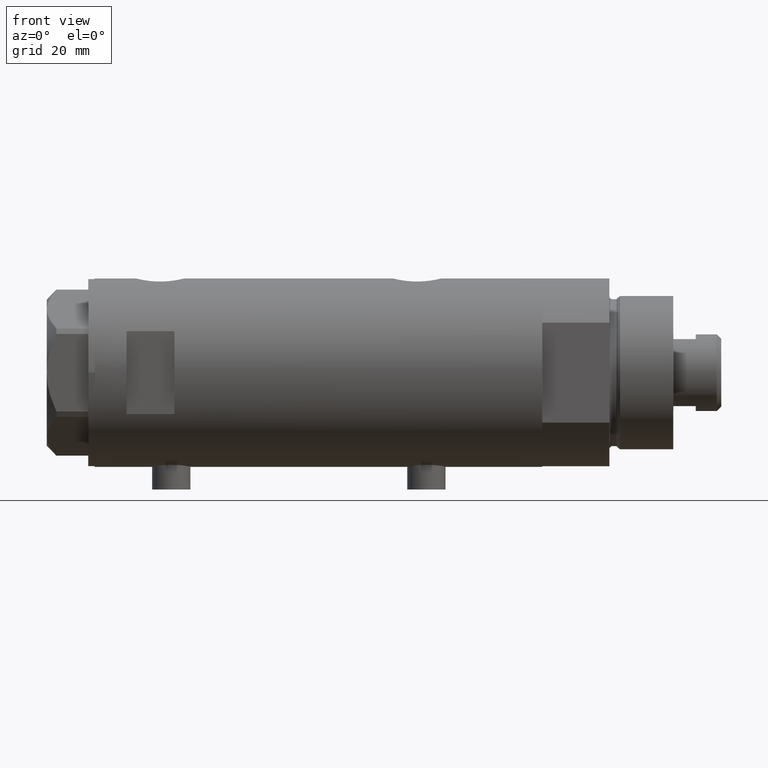
[diagram: clean part render]
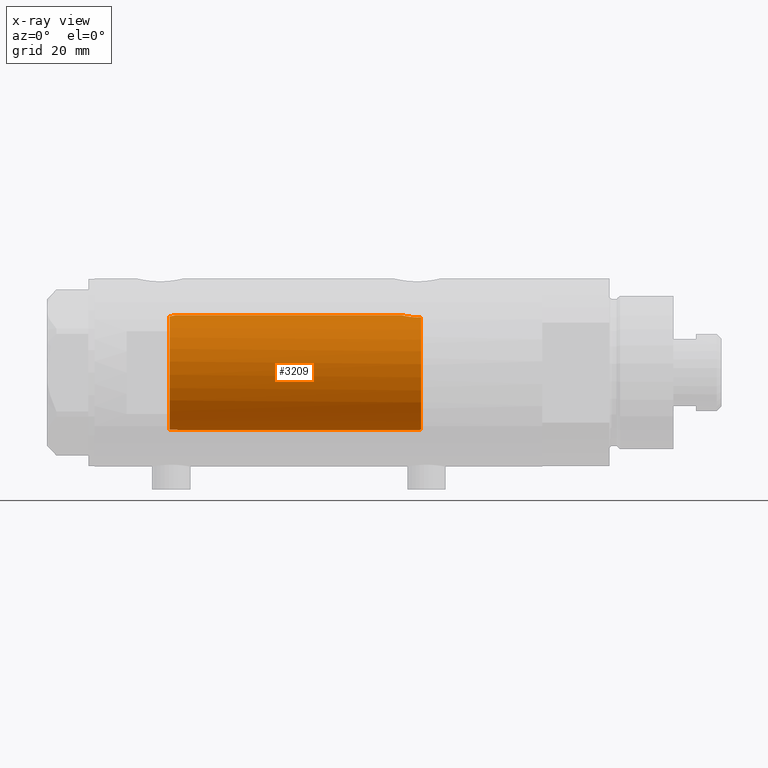
[diagram: x-ray — body ghosted, one internal face saturated and labeled with its STEP entity id]
A machine part, front view, then the same camera in x-ray: the body is ghosted and one INTERNAL B-rep face — a face not visible from any outside direction — is saturated and labeled: STEP entity #3209.
In plain terms, the highlighted cylindrical surface (partial cylindrical patch) has radius 18 mm, axis along (1, 0, -0).
Its self-contained STEP definition (entity closure, byte-faithful):
#13 = CARTESIAN_POINT ( 'NONE',  ( 17.63516507807922906, -3.613050995810184407, -27.62150009659157490 ) ) ;
#18 = CARTESIAN_POINT ( 'NONE',  ( 18.00000000000000000, 0.000000000000000000, 44.73499999999999233 ) ) ;
#23 = CARTESIAN_POINT ( 'NONE',  ( -17.94627262678028856, -1.397267050535908828, 44.01880386215051999 ) ) ;
#38 = B_SPLINE_CURVE_WITH_KNOTS ( 'NONE', 3,
 ( #1399, #2928, #3744, #3427, #822, #411, #1894, #1132, #3801, #4127, #91, #23, #1453, #3376, #2719, #4151, #2313, #4512 ),
 .UNSPECIFIED., .F., .F.,
 ( 4, 2, 2, 2, 2, 2, 2, 2, 4 ),
 ( 0.003411560698164756156, 0.003963315334502517072, 0.004515069970840277988, 0.005066824607178038037, 0.005618579243515798953, 0.006170333879853559002, 0.006722088516191319918, 0.007273843152529079967, 0.007825597788866840016 ),
 .UNSPECIFIED. ) ;
#91 = CARTESIAN_POINT ( 'NONE',  ( -17.92141329387995796, -1.686416898391165820, 44.24534892242944295 ) ) ;
#163 = CARTESIAN_POINT ( 'NONE',  ( 17.68806959355791264, -3.349106256179507746, 46.05213344176307544 ) ) ;
#250 = CARTESIAN_POINT ( 'NONE',  ( 17.83332390923721533, -2.466220319593706023, 45.39048875048362675 ) ) ;
#251 = VERTEX_POINT ( 'NONE', #4489 ) ;
#282 = CARTESIAN_POINT ( 'NONE',  ( 17.98578085412773220, -0.7388632979187842453, -26.08783263922210338 ) ) ;
#289 = DIRECTION ( 'NONE',  ( 0.000000000000000000, 0.000000000000000000, -1.000000000000000000 ) ) ;
#325 = CARTESIAN_POINT ( 'NONE',  ( 17.33821808943282861, -4.836569767017236288, -30.25823404381377912 ) ) ;
#411 = CARTESIAN_POINT ( 'NONE',  ( -17.84161419608464172, -2.383019834242969370, 45.32214247304368371 ) ) ;
#531 = CARTESIAN_POINT ( 'NONE',  ( 17.78689333688353003, -2.776822659814079941, 45.58837617090290451 ) ) ;
#564 = CARTESIAN_POINT ( 'NONE',  ( 18.00000000000001066, -0.3730735969061054202, 44.73499999999999233 ) ) ;
#602 = CARTESIAN_POINT ( 'NONE',  ( 17.98842269988416120, -0.7385803848020525697, 44.77734794098787319 ) ) ;
#645 = CARTESIAN_POINT ( 'NONE',  ( 0.000000000000000000, 0.000000000000000000, 70.09999999999999432 ) ) ;
#663 = VERTEX_POINT ( 'NONE', #3493 ) ;
#680 = DIRECTION ( 'NONE',  ( 1.000000000000000000, 0.000000000000000000, 0.000000000000000000 ) ) ;
#723 = CARTESIAN_POINT ( 'NONE',  ( -18.00000000000000000, 0.000000000000000000, 70.09999999999999432 ) ) ;
#747 = CARTESIAN_POINT ( 'NONE',  ( 17.32819690210316210, -4.871720223791780491, -30.63420793424217337 ) ) ;
#822 = CARTESIAN_POINT ( 'NONE',  ( -17.82961222738138218, -2.471215990870976320, 45.67936073756538207 ) ) ;
#913 = CARTESIAN_POINT ( 'NONE',  ( 0.000000000000000000, 0.000000000000000000, -32.09999999999998721 ) ) ;
#1043 = CARTESIAN_POINT ( 'NONE',  ( 17.41145422212636618, -4.568075757751900667, -29.18573299053985437 ) ) ;
#1057 = ORIENTED_EDGE ( 'NONE', *, *, #4130, .F. ) ;
#1132 = CARTESIAN_POINT ( 'NONE',  ( -17.87096055910521386, -2.153084948128371590, 44.81597358399613995 ) ) ;
#1146 = EDGE_CURVE ( 'NONE', #2168, #3986, #4579, .T. ) ;
#1240 = CARTESIAN_POINT ( 'NONE',  ( -18.00000000000000000, 0.000000000000000000, -31.29999999999999361 ) ) ;
#1255 = DIRECTION ( 'NONE',  ( -1.000000000000000000, 0.000000000000000000, 0.000000000000000000 ) ) ;
#1266 = CARTESIAN_POINT ( 'NONE',  ( 18.00000000000000000, 0.000000000000000000, 44.73499999999999233 ) ) ;
#1342 = ORIENTED_EDGE ( 'NONE', *, *, #2070, .F. ) ;
#1365 = CARTESIAN_POINT ( 'NONE',  ( 17.76113839466169253, -2.926207082530023040, -27.00911996042637497 ) ) ;
#1371 = ORIENTED_EDGE ( 'NONE', *, *, #3262, .F. ) ;
#1386 = CARTESIAN_POINT ( 'NONE',  ( 17.68752450041759872, -3.351772203450732235, -27.35493447381010768 ) ) ;
#1399 = CARTESIAN_POINT ( 'NONE',  ( -17.83255450012700649, -2.449489742783180546, 46.59999999999999432 ) ) ;
#1407 = CARTESIAN_POINT ( 'NONE',  ( -17.96337851667309948, -1.158344505448045458, -31.57792845501181134 ) ) ;
#1434 = CARTESIAN_POINT ( 'NONE',  ( -17.98799916691379153, -0.6781569973338291701, -31.38767516943829250 ) ) ;
#1452 = B_SPLINE_CURVE_WITH_KNOTS ( 'NONE', 3,
 ( #2556, #3666, #3347, #747, #325, #1794, #1043, #3719, #4038, #13, #1386, #1365, #3294, #2633, #4060, #2233, #4430, #2887, #282, #4758, #4352, #1470 ),
 .UNSPECIFIED., .F., .F.,
 ( 4, 2, 2, 2, 2, 2, 2, 2, 2, 2, 4 ),
 ( 0.006434066725458738659, 0.007540005695425722881, 0.008645944665392707104, 0.009751883635359691327, 0.01085782260532667381, 0.01196376157529365977, 0.01251673106027715102, 0.01306970054526064226, 0.01417563951522762475, 0.01472860900021111599, 0.01528157848519460724 ),
 .UNSPECIFIED. ) ;
#1453 = CARTESIAN_POINT ( 'NONE',  ( -17.95799318569972414, -1.240488120640597547, 43.92151761940910859 ) ) ;
#1470 = CARTESIAN_POINT ( 'NONE',  ( 18.00000000000000000, 5.958021437579254357E-16, -26.03499999999998948 ) ) ;
#1485 = DIRECTION ( 'NONE',  ( -0.000000000000000000, -0.000000000000000000, -1.000000000000000000 ) ) ;
#1579 = VERTEX_POINT ( 'NONE', #1240 ) ;
#1698 = FACE_OUTER_BOUND ( 'NONE', #4534, .T. ) ;
#1794 = CARTESIAN_POINT ( 'NONE',  ( 17.37991340314490785, -4.684530256828847605, -29.53638461192320364 ) ) ;
#1894 = CARTESIAN_POINT ( 'NONE',  ( -17.85016385956371110, -2.319193024669687020, 45.14824249665360867 ) ) ;
#2031 = CARTESIAN_POINT ( 'NONE',  ( 17.63693340989344449, -3.604419224588191639, 46.31212766824009464 ) ) ;
#2057 = VECTOR ( 'NONE', #1485, 1000.000000000000000 ) ;
#2070 = EDGE_CURVE ( 'NONE', #1579, #251, #4311, .T. ) ;
#2114 = CARTESIAN_POINT ( 'NONE',  ( -17.95304693865649881, -1.306837002857225816, -31.66186250319235995 ) ) ;
#2168 = VERTEX_POINT ( 'NONE', #18 ) ;
#2202 = EDGE_CURVE ( 'NONE', #4025, #251, #3996, .T. ) ;
#2233 = CARTESIAN_POINT ( 'NONE',  ( 17.91207243579358988, -1.808254927071299534, -26.36838658940774494 ) ) ;
#2247 = ORIENTED_EDGE ( 'NONE', *, *, #2749, .F. ) ;
#2269 = ORIENTED_EDGE ( 'NONE', *, *, #4656, .F. ) ;
#2313 = CARTESIAN_POINT ( 'NONE',  ( -18.00000000000000000, -0.1841775174153941208, 43.59999999999998721 ) ) ;
#2332 = VERTEX_POINT ( 'NONE', #3091 ) ;
#2354 = EDGE_CURVE ( 'NONE', #3009, #2332, #4233, .T. ) ;
#2366 = ORIENTED_EDGE ( 'NONE', *, *, #2354, .T. ) ;
#2556 = CARTESIAN_POINT ( 'NONE',  ( 17.37157951943346035, -4.714681855650494136, -32.09999999999998721 ) ) ;
#2558 = LINE ( 'NONE', #723, #3710 ) ;
#2625 = CARTESIAN_POINT ( 'NONE',  ( -18.00000000000000355, -0.1733192664045242748, -31.29999999999998650 ) ) ;
#2633 = CARTESIAN_POINT ( 'NONE',  ( 17.83055549281852237, -2.468946622824477188, -26.70402443991357444 ) ) ;
#2670 = CARTESIAN_POINT ( 'NONE',  ( 18.00000000000000000, 2.204364238465235033E-15, 70.09999999999999432 ) ) ;
#2719 = CARTESIAN_POINT ( 'NONE',  ( -17.98606631708114278, -0.7305574711896795082, 43.70204290403500380 ) ) ;
#2749 = EDGE_CURVE ( 'NONE', #2168, #2332, #3043, .T. ) ;
#2879 = CARTESIAN_POINT ( 'NONE',  ( -17.90642342847952051, -1.833030277982339085, -32.09999999999999432 ) ) ;
#2887 = CARTESIAN_POINT ( 'NONE',  ( 17.97721305204034792, -0.9231636963562657172, -26.11982822371821200 ) ) ;
#2928 = CARTESIAN_POINT ( 'NONE',  ( -17.82745028959547184, -2.486648956350799633, 46.41795777503244835 ) ) ;
#2960 = CARTESIAN_POINT ( 'NONE',  ( -18.00000000000000000, 0.000000000000000000, -31.29999999999999361 ) ) ;
#2980 = CARTESIAN_POINT ( 'NONE',  ( -17.98087476242610450, -0.8443177746099965741, -31.44065868517810358 ) ) ;
#3009 = VERTEX_POINT ( 'NONE', #3111 ) ;
#3043 = B_SPLINE_CURVE_WITH_KNOTS ( 'NONE', 3,
 ( #1266, #564, #602, #3583, #3125, #250, #531, #163, #2031, #4585 ),
 .UNSPECIFIED., .F., .F.,
 ( 4, 2, 2, 2, 4 ),
 ( 2.959341624767055034E-19, 0.001102956581910075453, 0.002205913163820150905, 0.003308869745730225274, 0.004411826327640300076 ),
 .UNSPECIFIED. ) ;
#3091 = CARTESIAN_POINT ( 'NONE',  ( 17.58783030962034033, -3.829911878881814058, 46.59999999999999432 ) ) ;
#3111 = CARTESIAN_POINT ( 'NONE',  ( -17.83255450012700649, -2.449489742783180546, 46.59999999999999432 ) ) ;
#3125 = CARTESIAN_POINT ( 'NONE',  ( 17.91197612045793619, -1.808534151376004040, 45.06883769349536806 ) ) ;
#3195 = CYLINDRICAL_SURFACE ( 'NONE', #4455, 18.00000000000000000 ) ;
#3209 = ADVANCED_FACE ( 'NONE', ( #1698 ), #3195, .F. ) ;
#3256 = DIRECTION ( 'NONE',  ( -1.000000000000000000, 0.000000000000000000, 0.000000000000000000 ) ) ;
#3262 = EDGE_CURVE ( 'NONE', #4025, #3986, #1452, .T. ) ;
#3294 = CARTESIAN_POINT ( 'NONE',  ( 17.78501549309440222, -2.778062367771705343, -26.90196575702887927 ) ) ;
#3308 = CARTESIAN_POINT ( 'NONE',  ( 18.00000000000000000, 5.958021437579254357E-16, -26.03499999999998948 ) ) ;
#3340 = CARTESIAN_POINT ( 'NONE',  ( -17.91828950152698141, -1.717113519283112621, -31.97501239504632764 ) ) ;
#3347 = CARTESIAN_POINT ( 'NONE',  ( 17.33258131920084466, -4.856098292894137636, -31.37181853595665615 ) ) ;
#3376 = CARTESIAN_POINT ( 'NONE',  ( -17.97805023087035536, -0.9044555994579360769, 43.76193320698389755 ) ) ;
#3427 = CARTESIAN_POINT ( 'NONE',  ( -17.82612683294494005, -2.495839706835423666, 45.86589454130189125 ) ) ;
#3472 = AXIS2_PLACEMENT_3D ( 'NONE', #913, #289, #3256 ) ;
#3493 = CARTESIAN_POINT ( 'NONE',  ( -18.00000000000000000, 3.061617490167439571E-16, 43.59999999999999432 ) ) ;
#3495 = DIRECTION ( 'NONE',  ( -0.000000000000000000, -0.000000000000000000, -1.000000000000000000 ) ) ;
#3549 = AXIS2_PLACEMENT_3D ( 'NONE', #4283, #4064, #680 ) ;
#3583 = CARTESIAN_POINT ( 'NONE',  ( 17.94467453319816386, -1.455166008437401626, 44.94318072553844701 ) ) ;
#3597 = CARTESIAN_POINT ( 'NONE',  ( 17.37157951943346035, -4.714681855650494136, -32.09999999999998721 ) ) ;
#3631 = CARTESIAN_POINT ( 'NONE',  ( -17.93047387985761532, -1.586765192895364107, -31.86050750712786339 ) ) ;
#3666 = CARTESIAN_POINT ( 'NONE',  ( 17.34665145232711225, -4.806531086046566870, -31.73913341666349197 ) ) ;
#3710 = VECTOR ( 'NONE', #4572, 1000.000000000000000 ) ;
#3719 = CARTESIAN_POINT ( 'NONE',  ( 17.49057517990651789, -4.255095079290338589, -28.51249222525178695 ) ) ;
#3744 = CARTESIAN_POINT ( 'NONE',  ( -17.82509864081395534, -2.503172417495155067, 46.23471843340850285 ) ) ;
#3801 = CARTESIAN_POINT ( 'NONE',  ( -17.88290241330588870, -2.053167186750453066, 44.66182020544687248 ) ) ;
#3986 = VERTEX_POINT ( 'NONE', #3308 ) ;
#3996 = CIRCLE ( 'NONE', #3472, 18.00000000000000000 ) ;
#4025 = VERTEX_POINT ( 'NONE', #3597 ) ;
#4038 = CARTESIAN_POINT ( 'NONE',  ( 17.53680980608543649, -4.063678955652868297, -28.20014584461345919 ) ) ;
#4060 = CARTESIAN_POINT ( 'NONE',  ( 17.85233710017094921, -2.306965814323740815, -26.61276266371618604 ) ) ;
#4064 = DIRECTION ( 'NONE',  ( 0.000000000000000000, 0.000000000000000000, 1.000000000000000000 ) ) ;
#4127 = CARTESIAN_POINT ( 'NONE',  ( -17.90808592989841941, -1.820481405547631937, 44.37671706610176869 ) ) ;
#4130 = EDGE_CURVE ( 'NONE', #3009, #663, #38, .T. ) ;
#4151 = CARTESIAN_POINT ( 'NONE',  ( -17.99706720933242110, -0.3713053243946072279, 43.62087821822401423 ) ) ;
#4233 = CIRCLE ( 'NONE', #3549, 18.00000000000000000 ) ;
#4280 = ORIENTED_EDGE ( 'NONE', *, *, #2202, .T. ) ;
#4283 = CARTESIAN_POINT ( 'NONE',  ( 0.000000000000000000, 0.000000000000000000, 46.59999999999999432 ) ) ;
#4311 = B_SPLINE_CURVE_WITH_KNOTS ( 'NONE', 3,
 ( #2960, #2625, #4776, #1434, #2980, #1407, #2114, #3631, #3340, #2879 ),
 .UNSPECIFIED., .F., .F.,
 ( 4, 2, 2, 2, 4 ),
 ( 7.710833376258529741E-20, 0.0005125302075870184033, 0.001025060415174036590, 0.001537590622761054885, 0.002050120830348073180 ),
 .UNSPECIFIED. ) ;
#4352 = CARTESIAN_POINT ( 'NONE',  ( 17.99999999999999645, -0.1843597763241279219, -26.03499999999997883 ) ) ;
#4430 = CARTESIAN_POINT ( 'NONE',  ( 17.94411621822183278, -1.462318180775791454, -26.24532018047458948 ) ) ;
#4455 = AXIS2_PLACEMENT_3D ( 'NONE', #645, #3495, #1255 ) ;
#4489 = CARTESIAN_POINT ( 'NONE',  ( -17.90642342847952051, -1.833030277982339085, -32.09999999999999432 ) ) ;
#4512 = CARTESIAN_POINT ( 'NONE',  ( -18.00000000000000000, 3.061617490167439571E-16, 43.59999999999999432 ) ) ;
#4534 = EDGE_LOOP ( 'NONE', ( #2247, #4752, #1371, #4280, #1342, #2269, #1057, #2366 ) ) ;
#4572 = DIRECTION ( 'NONE',  ( -0.000000000000000000, -0.000000000000000000, -1.000000000000000000 ) ) ;
#4579 = LINE ( 'NONE', #2670, #2057 ) ;
#4585 = CARTESIAN_POINT ( 'NONE',  ( 17.58783030962034033, -3.829911878881814058, 46.59999999999999432 ) ) ;
#4656 = EDGE_CURVE ( 'NONE', #663, #1579, #2558, .T. ) ;
#4752 = ORIENTED_EDGE ( 'NONE', *, *, #1146, .T. ) ;
#4758 = CARTESIAN_POINT ( 'NONE',  ( 17.99716838826709520, -0.3690012331666958634, -26.04544422515623481 ) ) ;
#4776 = CARTESIAN_POINT ( 'NONE',  ( -17.99749915382407295, -0.3435624397781262274, -31.31782900444971673 ) ) ;